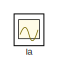
[diagram: root canvas - part 1/3, top left region]
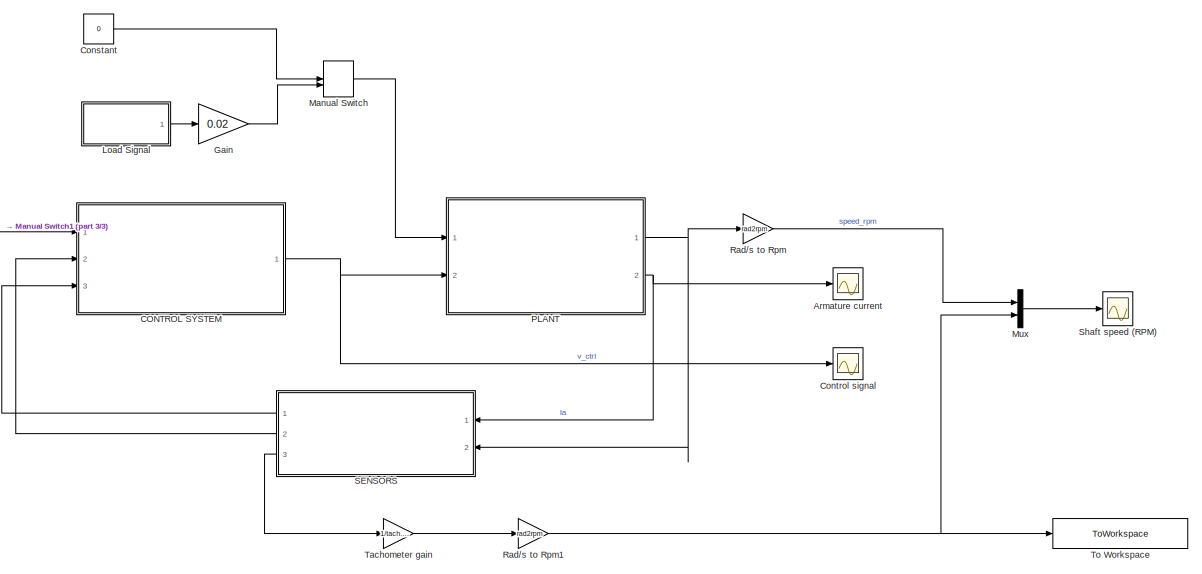
[diagram: root canvas - part 2/3, right side, full height]
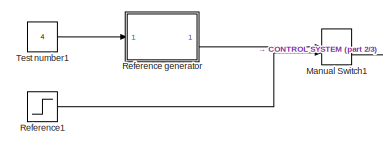
[diagram: root canvas - part 3/3, middle left region]
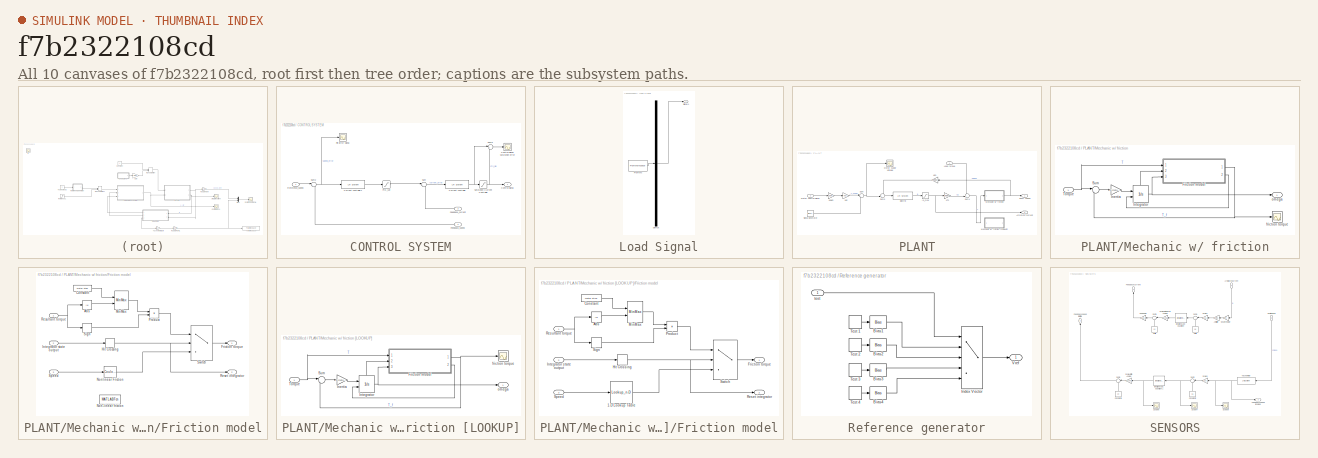
[diagram: thumbnail index - all 10 canvases of the model, root first then tree order]
MODEL slx_f7b2322108cd
KIND model
CONFIG InitFcn = InitModel;
BLOCK [Scope] Armature current 
  Floating = off
  LimitDataPoints = off
  NumInputPorts = 1
  Ports = [1]
  SaveName = ScopeData3
  ShowLegends = off
  YMax = 7
  YMin = 0
BLOCK [SubSystem] CONTROL SYSTEM
  Ports = [3, 1]
  RequestExecContextInheritance = off
BLOCK [Outport] CONTROL SYSTEM/Control signal
  IconDisplay = Port number
BLOCK [Scope] CONTROL SYSTEM/Control signal saturation error
  Decimation = 10
  Floating = off
  LimitDataPoints = off
  NumInputPorts = 1
  Ports = [1]
  SaveName = ScopeData4
  ShowLegends = off
  YMax = 1
  YMin = -1
  ZoomMode = xonly
BLOCK [Reference] CONTROL SYSTEM/Current controller  REF=cstblocks/LTI System
  IC = []
  Ports = [1, 1]
  SourceBlock = cstblocks/LTI System
  SourceType = LTI Block
  sys = -C1_dig
BLOCK [Reference] CONTROL SYSTEM/Current controller1  REF=cstblocks/LTI System
  IC = []
  Ports = [1, 1]
  SourceBlock = cstblocks/LTI System
  SourceType = LTI Block
  sys = C2_dig
BLOCK [Inport] CONTROL SYSTEM/Feedback_current
  IconDisplay = Port number
  Port = 3
BLOCK [Inport] CONTROL SYSTEM/Feedback_speed
  IconDisplay = Port number
  Port = 2
BLOCK [Saturate] CONTROL SYSTEM/PID_sat
  InputPortMap = u0
  LowerLimit = -2
  Ports = [1, 1]
  UpperLimit = 2
BLOCK [Scope] CONTROL SYSTEM/Pid Error signal
  Decimation = 20
  Floating = off
  LimitDataPoints = off
  NumInputPorts = 1
  Ports = [1]
  SaveName = ScopeData10
  ShowLegends = off
  ZoomMode = yonly
BLOCK [Inport] CONTROL SYSTEM/Reference_speed
  IconDisplay = Port number
BLOCK [Saturate] CONTROL SYSTEM/Saturation Current Controller
  InputPortMap = u0
  LowerLimit = -10
  Ports = [1, 1]
  UpperLimit = 10
BLOCK [Sum] CONTROL SYSTEM/Sum
  IconShape = round
  InputSameDT = off
  Inputs = |+-
  OutDataTypeStr = Inherit: Inherit via internal rule
  Ports = [2, 1]
  SaturateOnIntegerOverflow = off
BLOCK [Sum] CONTROL SYSTEM/Sum2
  IconShape = round
  InputSameDT = off
  Inputs = |+-
  OutDataTypeStr = Inherit: Inherit via internal rule
  Ports = [2, 1]
  SaturateOnIntegerOverflow = off
BLOCK [Sum] CONTROL SYSTEM/Sum3
  IconShape = round
  InputSameDT = off
  Inputs = |+-
  OutDataTypeStr = Inherit: Inherit via internal rule
  Ports = [2, 1]
  SaturateOnIntegerOverflow = off
BLOCK [Constant] Constant
  Value = 0
BLOCK [Scope] Control signal
  Floating = off
  LimitDataPoints = off
  NumInputPorts = 1
  Ports = [1]
  SaveName = ScopeData5
  ShowLegends = off
  YMax = 1.4
  YMin = -0.2
  ZoomMode = xonly
BLOCK [Gain] Gain
  Gain = 0.02
  OutDataTypeStr = Inherit: Inherit via internal rule
  ParamDataTypeStr = Inherit: Inherit via internal rule
  SaturateOnIntegerOverflow = off
BLOCK [Scope] Ia
  DataFormat = StructureWithTime
  Floating = off
  IOType = viewer
  LimitDataPoints = off
  NumInputPorts = 1
  Ports = []
  SampleTime = 0
  SaveName = ScopeData1
  ShowLegends = off
BLOCK [SubSystem] Load Signal
  ClipboardFcn = sigbuilder_block('clipboard');
  CloseFcn = sigbuilder_block('close');
  ContinueFcn = sigbuilder_block('continue');
  CopyFcn = sigbuilder_block('copy');
  DeleteFcn = sigbuilder_block('delete');
  LoadFcn = sigbuilder_block('load');
  MaskHideContents = on
  ModelCloseFcn = sigbuilder_block('modelClose');
  NameChangeFcn = sigbuilder_block('namechange');
  OpenFcn = sigbuilder_block('open',[437.6 199.2 550.4 400 ]);
  PauseFcn = sigbuilder_block('pause');
  Ports = [0, 1]
  PreSaveFcn = sigbuilder_block('preSave');
  RequestExecContextInheritance = off
  StartFcn = sigbuilder_block('start');
  StopFcn = sigbuilder_block('stop');
  Tag = STV Subsys
BLOCK [Demux] Load Signal/Demux
  Outputs = 1
  Ports = [1, 1]
  Tag = STV Demux
BLOCK [FromWorkspace] Load Signal/FromWs
  SampleTime = 0
  Tag = STV FromWs
  VariableName = tuvar
  ZeroCross = on
BLOCK [Outport] Load Signal/Signal 1
  IconDisplay = Port number
  Tag = STV Outport
BLOCK [ManualSwitch] Manual Switch
BLOCK [ManualSwitch] Manual Switch1
BLOCK [Mux] Mux
  DisplayOption = bar
  Inputs = 2
  Ports = [2, 1]
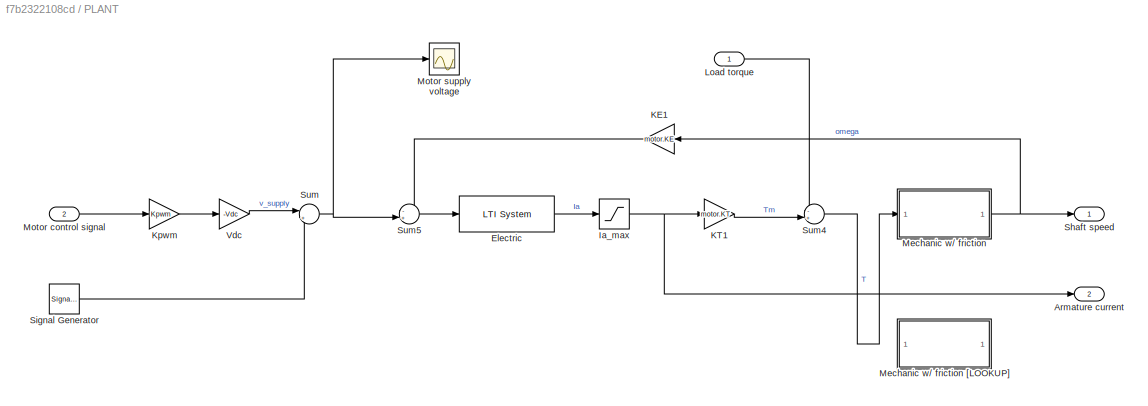
BLOCK [SubSystem] PLANT
  Ports = [2, 2]
  RequestExecContextInheritance = off
BLOCK [Outport] PLANT/Armature current
  IconDisplay = Port number
  Port = 2
BLOCK [Reference] PLANT/Electric  REF=cstblocks/LTI System
  IC = []
  Ports = [1, 1]
  SourceBlock = cstblocks/LTI System
  SourceType = LTI Block
  sys = G1
BLOCK [Saturate] PLANT/Ia_max
  Commented = through
  InputPortMap = u0
  LowerLimit = -motor.Ia_max
  Ports = [1, 1]
  UpperLimit = motor.Ia_max
BLOCK [Gain] PLANT/KE1
  Gain = motor.KE
  OutDataTypeStr = Inherit: Inherit via internal rule
  ParamDataTypeStr = Inherit: Inherit via internal rule
  SaturateOnIntegerOverflow = off
BLOCK [Gain] PLANT/KT1
  Gain = motor.KT
  OutDataTypeStr = Inherit: Inherit via internal rule
  ParamDataTypeStr = Inherit: Inherit via internal rule
  SaturateOnIntegerOverflow = off
BLOCK [Gain] PLANT/Kpwm
  Gain = Kpwm
  OutDataTypeStr = Inherit: Inherit via internal rule
  ParamDataTypeStr = Inherit: Inherit via internal rule
  SaturateOnIntegerOverflow = off
BLOCK [Inport] PLANT/Load torque
  IconDisplay = Port number
BLOCK [SubSystem] PLANT/Mechanic w// friction
  Ports = [1, 1]
  RequestExecContextInheritance = off
BLOCK [SubSystem] PLANT/Mechanic w// friction [LOOKUP]
  Ports = [1, 1]
  RequestExecContextInheritance = off
BLOCK [SubSystem] PLANT/Mechanic w// friction [LOOKUP]/Friction model
  Ports = [3, 2]
  RequestExecContextInheritance = off
BLOCK [Lookup_n-D] PLANT/Mechanic w// friction [LOOKUP]/Friction model/1-D Lookup Table
  BreakpointsForDimension1 = sp
  InternalRulePriority = Speed
  NumberOfTableDimensions = 1
  Ports = [1, 1]
  RndMeth = Simplest
  Table = tau
BLOCK [Abs] PLANT/Mechanic w// friction [LOOKUP]/Friction model/Abs
  SaturateOnIntegerOverflow = off
BLOCK [Constant] PLANT/Mechanic w// friction [LOOKUP]/Friction model/Constant
  Value = motor.stick
BLOCK [Outport] PLANT/Mechanic w// friction [LOOKUP]/Friction model/Friction torque
  IconDisplay = Port number
BLOCK [HitCross] PLANT/Mechanic w// friction [LOOKUP]/Friction model/Hit Crossing
  Ports = [1, 1]
BLOCK [Inport] PLANT/Mechanic w// friction [LOOKUP]/Friction model/Integrator state output
  IconDisplay = Port number
  Port = 2
BLOCK [MinMax] PLANT/Mechanic w// friction [LOOKUP]/Friction model/MinMax
  InputSameDT = off
  Inputs = 2
  Ports = [2, 1]
  SaturateOnIntegerOverflow = off
BLOCK [Product] PLANT/Mechanic w// friction [LOOKUP]/Friction model/Product
  InputSameDT = off
  OutDataTypeStr = Inherit: Inherit via internal rule
  Ports = [2, 1]
  RndMeth = Floor
  SaturateOnIntegerOverflow = off
BLOCK [Outport] PLANT/Mechanic w// friction [LOOKUP]/Friction model/Reset integrator
  IconDisplay = Port number
  Port = 2
BLOCK [Inport] PLANT/Mechanic w// friction [LOOKUP]/Friction model/Resultant torque
  IconDisplay = Port number
BLOCK [Signum] PLANT/Mechanic w// friction [LOOKUP]/Friction model/Sign
BLOCK [Inport] PLANT/Mechanic w// friction [LOOKUP]/Friction model/Speed
  IconDisplay = Port number
  Port = 3
BLOCK [Switch] PLANT/Mechanic w// friction [LOOKUP]/Friction model/Switch
  Criteria = u2 > Threshold
  InputSameDT = off
  SaturateOnIntegerOverflow = off
  Threshold = 0.5
BLOCK [Gain] PLANT/Mechanic w// friction [LOOKUP]/Inertia
  Gain = 1/(motor.J + motor.Jadd)
  OutDataTypeStr = Inherit: Inherit via internal rule
  ParamDataTypeStr = Inherit: Inherit via internal rule
  SaturateOnIntegerOverflow = off
BLOCK [Integrator] PLANT/Mechanic w// friction [LOOKUP]/Integrator
  ExternalReset = rising
  Ports = [2, 1, 0, 0, 1]
  ShowStatePort = on
BLOCK [Sum] PLANT/Mechanic w// friction [LOOKUP]/Sum
  IconShape = round
  InputSameDT = off
  Inputs = |+-
  OutDataTypeStr = Inherit: Inherit via internal rule
  Ports = [2, 1]
  SaturateOnIntegerOverflow = off
BLOCK [Inport] PLANT/Mechanic w// friction [LOOKUP]/Torque
  IconDisplay = Port number
BLOCK [Scope] PLANT/Mechanic w// friction [LOOKUP]/friction torque
  Floating = off
  LimitDataPoints = off
  NumInputPorts = 1
  Ports = [1]
  SaveName = ScopeData9
  ShowLegends = off
  YMax = 0.0125
  YMin = 0.0075
  ZoomMode = xonly
BLOCK [Outport] PLANT/Mechanic w// friction [LOOKUP]/omega
  IconDisplay = Port number
BLOCK [SubSystem] PLANT/Mechanic w// friction/Friction model
  Ports = [3, 2]
  RequestExecContextInheritance = off
BLOCK [Abs] PLANT/Mechanic w// friction/Friction model/Abs
  SaturateOnIntegerOverflow = off
BLOCK [Constant] PLANT/Mechanic w// friction/Friction model/Constant
  Value = motor.stick
BLOCK [Outport] PLANT/Mechanic w// friction/Friction model/Friction torque
  IconDisplay = Port number
BLOCK [HitCross] PLANT/Mechanic w// friction/Friction model/Hit Crossing
  Ports = [1, 1]
BLOCK [Inport] PLANT/Mechanic w// friction/Friction model/Integrator state output
  IconDisplay = Port number
  Port = 2
BLOCK [MinMax] PLANT/Mechanic w// friction/Friction model/MinMax
  InputSameDT = off
  Inputs = 2
  Ports = [2, 1]
  SaturateOnIntegerOverflow = off
BLOCK [MATLABFcn] PLANT/Mechanic w// friction/Friction model/Non-linear friction
  MATLABFcn = motor.coulomb+(motor.stick - motor.coulomb)*exp(-u) + u*motor.beta
  Ports = [1, 1]
BLOCK [Reference] PLANT/Mechanic w// friction/Friction model/Nonlinear Friction  REF=simulink/Discontinuities/Coulomb &
Viscous Friction
  Ports = [1, 1]
  SourceBlock = simulink/Discontinuities/Coulomb &\nViscous Friction
  SourceType = Coulombic and Viscous Friction
  gain = motor.beta
  offset = motor.coulomb
BLOCK [Product] PLANT/Mechanic w// friction/Friction model/Product
  InputSameDT = off
  OutDataTypeStr = Inherit: Inherit via internal rule
  Ports = [2, 1]
  RndMeth = Floor
  SaturateOnIntegerOverflow = off
BLOCK [Outport] PLANT/Mechanic w// friction/Friction model/Reset integrator
  IconDisplay = Port number
  Port = 2
BLOCK [Inport] PLANT/Mechanic w// friction/Friction model/Resultant torque
  IconDisplay = Port number
BLOCK [Signum] PLANT/Mechanic w// friction/Friction model/Sign
BLOCK [Inport] PLANT/Mechanic w// friction/Friction model/Speed
  IconDisplay = Port number
  Port = 3
BLOCK [Switch] PLANT/Mechanic w// friction/Friction model/Switch
  Criteria = u2 > Threshold
  InputSameDT = off
  SaturateOnIntegerOverflow = off
  Threshold = 0.5
BLOCK [Gain] PLANT/Mechanic w// friction/Inertia
  Gain = 1/(motor.J + motor.Jadd)
  OutDataTypeStr = Inherit: Inherit via internal rule
  ParamDataTypeStr = Inherit: Inherit via internal rule
  SaturateOnIntegerOverflow = off
BLOCK [Integrator] PLANT/Mechanic w// friction/Integrator
  ExternalReset = rising
  Ports = [2, 1, 0, 0, 1]
  ShowStatePort = on
BLOCK [Sum] PLANT/Mechanic w// friction/Sum
  IconShape = round
  InputSameDT = off
  Inputs = |+-
  OutDataTypeStr = Inherit: Inherit via internal rule
  Ports = [2, 1]
  SaturateOnIntegerOverflow = off
BLOCK [Inport] PLANT/Mechanic w// friction/Torque
  IconDisplay = Port number
BLOCK [Scope] PLANT/Mechanic w// friction/friction torque
  Floating = off
  LimitDataPoints = off
  NumInputPorts = 1
  Ports = [1]
  SaveName = ScopeData9
  ShowLegends = off
  YMax = 0.0125
  YMin = 0.0075
  ZoomMode = xonly
BLOCK [Outport] PLANT/Mechanic w// friction/omega
  IconDisplay = Port number
BLOCK [Inport] PLANT/Motor control signal
  IconDisplay = Port number
  Port = 2
BLOCK [Scope] PLANT/Motor supply voltage
  Floating = off
  LimitDataPoints = off
  NumInputPorts = 1
  Ports = [1]
  SaveName = ScopeData2
  ShowLegends = off
  ZoomMode = xonly
BLOCK [Outport] PLANT/Shaft speed
  IconDisplay = Port number
BLOCK [SignalGenerator] PLANT/Signal Generator
  Amplitude = 0.03
  Commented = on
  Frequency = 23e3
  Ports = [0, 1]
  WaveForm = square
BLOCK [Sum] PLANT/Sum
  IconShape = round
  InputSameDT = off
  Inputs = |++
  OutDataTypeStr = Inherit: Inherit via internal rule
  Ports = [2, 1]
  SaturateOnIntegerOverflow = off
BLOCK [Sum] PLANT/Sum4
  IconShape = round
  InputSameDT = off
  Inputs = -+|
  OutDataTypeStr = Inherit: Inherit via internal rule
  Ports = [2, 1]
  SaturateOnIntegerOverflow = off
BLOCK [Sum] PLANT/Sum5
  IconShape = round
  InputSameDT = off
  Inputs = -+|
  OutDataTypeStr = Inherit: Inherit via internal rule
  Ports = [2, 1]
  SaturateOnIntegerOverflow = off
BLOCK [Gain] PLANT/Vdc
  Gain = -Vdc
  OutDataTypeStr = Inherit: Inherit via internal rule
  ParamDataTypeStr = Inherit: Inherit via internal rule
  SaturateOnIntegerOverflow = off
BLOCK [Gain] Rad//s to Rpm
  Gain = rad2rpm
  OutDataTypeStr = Inherit: Inherit via internal rule
  ParamDataTypeStr = Inherit: Inherit via internal rule
  SaturateOnIntegerOverflow = off
BLOCK [Gain] Rad//s to Rpm1
  Gain = rad2rpm
  OutDataTypeStr = Inherit: Inherit via internal rule
  ParamDataTypeStr = Inherit: Inherit via internal rule
  SaturateOnIntegerOverflow = off
BLOCK [SubSystem] Reference generator
  Ports = [1, 1]
  RequestExecContextInheritance = off
BLOCK [Bias] Reference generator/Bias1
  Bias = 3
  SaturateOnIntegerOverflow = off
BLOCK [Bias] Reference generator/Bias2
  Bias = 1
  SaturateOnIntegerOverflow = off
BLOCK [Bias] Reference generator/Bias3
  SaturateOnIntegerOverflow = off
BLOCK [Bias] Reference generator/Bias4
  Bias = -1
  SaturateOnIntegerOverflow = off
BLOCK [MultiPortSwitch] Reference generator/Index Vector
  InputSameDT = off
  Inputs = 4
  Ports = [5, 1]
  SaturateOnIntegerOverflow = off
BLOCK [DiscretePulseGenerator] Reference generator/Test 1
  Amplitude = 2
  Period = 5
  PhaseDelay = 1
  Ports = [0, 1]
  PulseType = Time based
  PulseWidth = 50
BLOCK [DiscretePulseGenerator] Reference generator/Test 2
  Amplitude = 6
  Period = 5
  PhaseDelay = 1
  Ports = [0, 1]
  PulseType = Time based
  PulseWidth = 50
BLOCK [DiscretePulseGenerator] Reference generator/Test 3
  Amplitude = 8
  Period = 5
  PhaseDelay = 1
  Ports = [0, 1]
  PulseType = Time based
  PulseWidth = 50
BLOCK [DiscretePulseGenerator] Reference generator/Test 4
  Amplitude = 2
  Period = 5
  PhaseDelay = 1
  Ports = [0, 1]
  PulseType = Time based
  PulseWidth = 50
BLOCK [Outport] Reference generator/Vref
  IconDisplay = Port number
BLOCK [Inport] Reference generator/test
  IconDisplay = Port number
BLOCK [Step] Reference1
  SampleTime = 0
  Time = 0
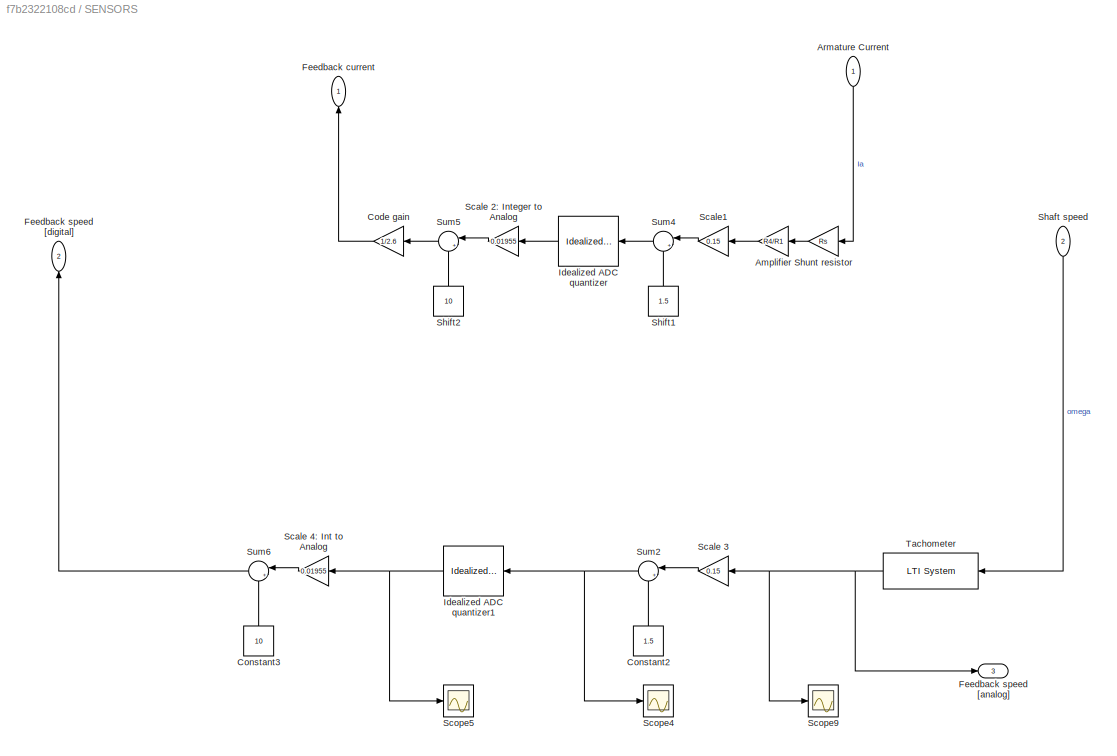
BLOCK [SubSystem] SENSORS
  Ports = [2, 3]
  RequestExecContextInheritance = off
BLOCK [Gain] SENSORS/ Amplifier 
  Gain = R4/R1
  OutDataTypeStr = Inherit: Inherit via internal rule
  ParamDataTypeStr = Inherit: Inherit via internal rule
  SaturateOnIntegerOverflow = off
BLOCK [Gain] SENSORS/ Code gain
  Gain = 1/2.6
  OutDataTypeStr = Inherit: Inherit via internal rule
  ParamDataTypeStr = Inherit: Inherit via internal rule
  SaturateOnIntegerOverflow = off
BLOCK [Gain] SENSORS/ Scale 3
  Gain = 0.15
  OutDataTypeStr = Inherit: Inherit via internal rule
  ParamDataTypeStr = Inherit: Inherit via internal rule
  SaturateOnIntegerOverflow = off
BLOCK [Gain] SENSORS/ Scale 4: Int to Analog
  Gain = 0.01955
  OutDataTypeStr = Inherit: Inherit via internal rule
  ParamDataTypeStr = Inherit: Inherit via internal rule
  SaturateOnIntegerOverflow = off
BLOCK [Gain] SENSORS/ Scale1
  Gain = 0.15
  OutDataTypeStr = Inherit: Inherit via internal rule
  ParamDataTypeStr = Inherit: Inherit via internal rule
  SaturateOnIntegerOverflow = off
BLOCK [Gain] SENSORS/ Shunt resistor
  Gain = Rs
  OutDataTypeStr = Inherit: Inherit via internal rule
  ParamDataTypeStr = Inherit: Inherit via internal rule
  SaturateOnIntegerOverflow = off
BLOCK [Inport] SENSORS/Armature Current
  IconDisplay = Port number
BLOCK [Constant] SENSORS/Constant2
  Value = 1.5
BLOCK [Constant] SENSORS/Constant3
  Value = 10
BLOCK [Outport] SENSORS/Feedback current
  IconDisplay = Port number
BLOCK [Outport] SENSORS/Feedback speed [analog]
  IconDisplay = Port number
  Port = 3
BLOCK [Outport] SENSORS/Feedback speed [digital] 
  IconDisplay = Port number
  Port = 2
BLOCK [Reference] SENSORS/Idealized ADC quantizer  REF=simulink_extras/Additional
Discrete/Idealized ADC quantizer
  AttributesFormatString = (settings: %<NumberOfConverterBits>-bit converter\nVmin: %<Vmin>, Vmax: %<Vmax>)
  NumberOfConverterBits = 10
  OutputDataType = uint16
  OutputNegativeValues = on
  Ports = [1, 1]
  SourceBlock = simulink_extras/Additional\nDiscrete/Idealized ADC quantizer
  SourceType = IdealADC
  Vmax = 3
  Vmin = 0
BLOCK [Reference] SENSORS/Idealized ADC quantizer1  REF=simulink_extras/Additional
Discrete/Idealized ADC quantizer
  AttributesFormatString = (settings: %<NumberOfConverterBits>-bit converter\nVmin: %<Vmin>, Vmax: %<Vmax>)
  NumberOfConverterBits = 10
  OutputDataType = uint16
  OutputNegativeValues = on
  Ports = [1, 1]
  SourceBlock = simulink_extras/Additional\nDiscrete/Idealized ADC quantizer
  SourceType = IdealADC
  Vmax = 3
  Vmin = 0
BLOCK [Gain] SENSORS/Scale 2: Integer to Analog
  Gain = 0.01955
  OutDataTypeStr = Inherit: Inherit via internal rule
  ParamDataTypeStr = Inherit: Inherit via internal rule
  SaturateOnIntegerOverflow = off
BLOCK [Scope] SENSORS/Scope4
  Decimation = 10
  Floating = off
  LimitDataPoints = off
  NumInputPorts = 1
  Ports = [1]
  SaveName = ScopeData6
  ShowLegends = off
  YMax = -3.75
  YMin = -3.95
  ZoomMode = xonly
BLOCK [Scope] SENSORS/Scope5
  Decimation = 10
  Floating = off
  LimitDataPoints = off
  NumInputPorts = 1
  Ports = [1]
  SaveName = ScopeData7
  ShowLegends = off
  YMax = 1100
  YMin = 500
  ZoomMode = yonly
BLOCK [Scope] SENSORS/Scope9
  Decimation = 10
  Floating = off
  LimitDataPoints = off
  NumInputPorts = 1
  Ports = [1]
  SaveName = ScopeData8
  ShowLegends = off
  YMax = 35
  ZoomMode = xonly
BLOCK [Inport] SENSORS/Shaft speed
  IconDisplay = Port number
  Port = 2
BLOCK [Constant] SENSORS/Shift1
  Value = 1.5
BLOCK [Constant] SENSORS/Shift2
  Value = 10
BLOCK [Sum] SENSORS/Sum2
  IconShape = round
  InputSameDT = off
  Inputs = |++
  OutDataTypeStr = Inherit: Inherit via internal rule
  Ports = [2, 1]
  SaturateOnIntegerOverflow = off
BLOCK [Sum] SENSORS/Sum4
  IconShape = round
  InputSameDT = off
  Inputs = |++
  OutDataTypeStr = Inherit: Inherit via internal rule
  Ports = [2, 1]
  SaturateOnIntegerOverflow = off
BLOCK [Sum] SENSORS/Sum5
  IconShape = round
  InputSameDT = off
  Inputs = |+-
  OutDataTypeStr = Inherit: Inherit via internal rule
  Ports = [2, 1]
  SaturateOnIntegerOverflow = off
BLOCK [Sum] SENSORS/Sum6
  IconShape = round
  InputSameDT = off
  Inputs = |+-
  OutDataTypeStr = Inherit: Inherit via internal rule
  Ports = [2, 1]
  SaturateOnIntegerOverflow = off
BLOCK [Reference] SENSORS/Tachometer  REF=cstblocks/LTI System
  IC = []
  Ports = [1, 1]
  SourceBlock = cstblocks/LTI System
  SourceType = LTI Block
  sys = H2
BLOCK [Scope] Shaft speed (RPM)
  Floating = off
  LegendLocations = 0.88602     0.88062    0.080852     0.04157
  LimitDataPoints = off
  NumInputPorts = 1
  Ports = [1]
  ShowLegends = on
  TimeRange = 1
  YMin = -1
BLOCK [Gain] Tachometer gain
  Gain = 1/tach.gain
  OutDataTypeStr = Inherit: Inherit via internal rule
  ParamDataTypeStr = Inherit: Inherit via internal rule
  SaturateOnIntegerOverflow = off
BLOCK [Constant] Test number1
  Value = 4
BLOCK [ToWorkspace] To Workspace
  FixptAsFi = on
  MaxDataPoints = inf
  Ports = [1]
  SampleTime = -1
  Save2DSignal = 2-D array (concatenate along first dimension)
  SaveFormat = Timeseries
  VariableName = sim_omegaDNL4
LINE CONTROL SYSTEM/Current controller1:1 -> CONTROL SYSTEM/PID_sat:1
NET CONTROL SYSTEM/Current controller:1 -> CONTROL SYSTEM/Saturation Current Controller:1, CONTROL SYSTEM/Sum3:1
LINE CONTROL SYSTEM/Feedback_current:1 -> CONTROL SYSTEM/Sum:2
LINE CONTROL SYSTEM/Feedback_speed:1 -> CONTROL SYSTEM/Sum2:2
LINE CONTROL SYSTEM/PID_sat:1 -> CONTROL SYSTEM/Sum:1
LINE CONTROL SYSTEM/Reference_speed:1 -> CONTROL SYSTEM/Sum2:1
NET CONTROL SYSTEM/Saturation Current Controller:1 -> CONTROL SYSTEM/Control signal:1, CONTROL SYSTEM/Sum3:2
NET CONTROL SYSTEM/Sum2:1 -> CONTROL SYSTEM/Current controller1:1, CONTROL SYSTEM/Pid Error signal:1
LINE CONTROL SYSTEM/Sum3:1 -> CONTROL SYSTEM/Control signal saturation error:1
LINE CONTROL SYSTEM/Sum:1 -> CONTROL SYSTEM/Current controller:1
NET CONTROL SYSTEM:1 -> Control signal:1, PLANT:2
LINE Constant:1 -> Manual Switch:1
LINE Gain:1 -> Manual Switch:2
LINE Load Signal:1 -> Gain:1
LINE Manual Switch1:1 -> CONTROL SYSTEM:1
LINE Manual Switch:1 -> PLANT:1
LINE Mux:1 -> Shaft speed (RPM):1
LINE PLANT/Electric:1 -> PLANT/Ia_max:1
NET PLANT/Ia_max:1 -> PLANT/Armature current:1, PLANT/KT1:1
LINE PLANT/KE1:1 -> PLANT/Sum5:1
LINE PLANT/KT1:1 -> PLANT/Sum4:2
LINE PLANT/Kpwm:1 -> PLANT/Vdc:1
LINE PLANT/Load torque:1 -> PLANT/Sum4:1
LINE PLANT/Mechanic w// friction [LOOKUP]/Friction model/1-D Lookup Table:1 -> PLANT/Mechanic w// friction [LOOKUP]/Friction model/Switch:3
LINE PLANT/Mechanic w// friction [LOOKUP]/Friction model/Abs:1 -> PLANT/Mechanic w// friction [LOOKUP]/Friction model/MinMax:2
LINE PLANT/Mechanic w// friction [LOOKUP]/Friction model/Constant:1 -> PLANT/Mechanic w// friction [LOOKUP]/Friction model/MinMax:1
NET PLANT/Mechanic w// friction [LOOKUP]/Friction model/Hit Crossing:1 -> PLANT/Mechanic w// friction [LOOKUP]/Friction model/Reset integrator:1, PLANT/Mechanic w// friction [LOOKUP]/Friction model/Switch:2
LINE PLANT/Mechanic w// friction [LOOKUP]/Friction model/Integrator state output:1 -> PLANT/Mechanic w// friction [LOOKUP]/Friction model/Hit Crossing:1
LINE PLANT/Mechanic w// friction [LOOKUP]/Friction model/MinMax:1 -> PLANT/Mechanic w// friction [LOOKUP]/Friction model/Product:1
LINE PLANT/Mechanic w// friction [LOOKUP]/Friction model/Product:1 -> PLANT/Mechanic w// friction [LOOKUP]/Friction model/Switch:1
NET PLANT/Mechanic w// friction [LOOKUP]/Friction model/Resultant torque:1 -> PLANT/Mechanic w// friction [LOOKUP]/Friction model/Abs:1, PLANT/Mechanic w// friction [LOOKUP]/Friction model/Sign:1
LINE PLANT/Mechanic w// friction [LOOKUP]/Friction model/Sign:1 -> PLANT/Mechanic w// friction [LOOKUP]/Friction model/Product:2
LINE PLANT/Mechanic w// friction [LOOKUP]/Friction model/Speed:1 -> PLANT/Mechanic w// friction [LOOKUP]/Friction model/1-D Lookup Table:1
LINE PLANT/Mechanic w// friction [LOOKUP]/Friction model/Switch:1 -> PLANT/Mechanic w// friction [LOOKUP]/Friction model/Friction torque:1
NET PLANT/Mechanic w// friction [LOOKUP]/Friction model:1 -> PLANT/Mechanic w// friction [LOOKUP]/Sum:2, PLANT/Mechanic w// friction [LOOKUP]/friction torque:1
LINE PLANT/Mechanic w// friction [LOOKUP]/Friction model:2 -> PLANT/Mechanic w// friction [LOOKUP]/Integrator:2
LINE PLANT/Mechanic w// friction [LOOKUP]/Inertia:1 -> PLANT/Mechanic w// friction [LOOKUP]/Integrator:1
NET PLANT/Mechanic w// friction [LOOKUP]/Integrator:1 -> PLANT/Mechanic w// friction [LOOKUP]/Friction model:3, PLANT/Mechanic w// friction [LOOKUP]/omega:1
LINE PLANT/Mechanic w// friction [LOOKUP]/Integrator:state -> PLANT/Mechanic w// friction [LOOKUP]/Friction model:2
LINE PLANT/Mechanic w// friction [LOOKUP]/Sum:1 -> PLANT/Mechanic w// friction [LOOKUP]/Inertia:1
NET PLANT/Mechanic w// friction [LOOKUP]/Torque:1 -> PLANT/Mechanic w// friction [LOOKUP]/Friction model:1, PLANT/Mechanic w// friction [LOOKUP]/Sum:1
LINE PLANT/Mechanic w// friction/Friction model/Abs:1 -> PLANT/Mechanic w// friction/Friction model/MinMax:2
LINE PLANT/Mechanic w// friction/Friction model/Constant:1 -> PLANT/Mechanic w// friction/Friction model/MinMax:1
NET PLANT/Mechanic w// friction/Friction model/Hit Crossing:1 -> PLANT/Mechanic w// friction/Friction model/Reset integrator:1, PLANT/Mechanic w// friction/Friction model/Switch:2
LINE PLANT/Mechanic w// friction/Friction model/Integrator state output:1 -> PLANT/Mechanic w// friction/Friction model/Hit Crossing:1
LINE PLANT/Mechanic w// friction/Friction model/MinMax:1 -> PLANT/Mechanic w// friction/Friction model/Product:1
LINE PLANT/Mechanic w// friction/Friction model/Nonlinear Friction:1 -> PLANT/Mechanic w// friction/Friction model/Switch:3
LINE PLANT/Mechanic w// friction/Friction model/Product:1 -> PLANT/Mechanic w// friction/Friction model/Switch:1
NET PLANT/Mechanic w// friction/Friction model/Resultant torque:1 -> PLANT/Mechanic w// friction/Friction model/Abs:1, PLANT/Mechanic w// friction/Friction model/Sign:1
LINE PLANT/Mechanic w// friction/Friction model/Sign:1 -> PLANT/Mechanic w// friction/Friction model/Product:2
LINE PLANT/Mechanic w// friction/Friction model/Speed:1 -> PLANT/Mechanic w// friction/Friction model/Nonlinear Friction:1
LINE PLANT/Mechanic w// friction/Friction model/Switch:1 -> PLANT/Mechanic w// friction/Friction model/Friction torque:1
NET PLANT/Mechanic w// friction/Friction model:1 -> PLANT/Mechanic w// friction/Sum:2, PLANT/Mechanic w// friction/friction torque:1
LINE PLANT/Mechanic w// friction/Friction model:2 -> PLANT/Mechanic w// friction/Integrator:2
LINE PLANT/Mechanic w// friction/Inertia:1 -> PLANT/Mechanic w// friction/Integrator:1
NET PLANT/Mechanic w// friction/Integrator:1 -> PLANT/Mechanic w// friction/Friction model:3, PLANT/Mechanic w// friction/omega:1
LINE PLANT/Mechanic w// friction/Integrator:state -> PLANT/Mechanic w// friction/Friction model:2
LINE PLANT/Mechanic w// friction/Sum:1 -> PLANT/Mechanic w// friction/Inertia:1
NET PLANT/Mechanic w// friction/Torque:1 -> PLANT/Mechanic w// friction/Friction model:1, PLANT/Mechanic w// friction/Sum:1
NET PLANT/Mechanic w// friction:1 -> PLANT/KE1:1, PLANT/Shaft speed:1
LINE PLANT/Motor control signal:1 -> PLANT/Kpwm:1
LINE PLANT/Signal Generator:1 -> PLANT/Sum:2
LINE PLANT/Sum4:1 -> PLANT/Mechanic w// friction:1
LINE PLANT/Sum5:1 -> PLANT/Electric:1
NET PLANT/Sum:1 -> PLANT/Motor supply voltage:1, PLANT/Sum5:2
LINE PLANT/Vdc:1 -> PLANT/Sum:1
NET PLANT:1 -> Rad//s to Rpm:1, SENSORS:2
NET PLANT:2 -> Armature current :1, SENSORS:1
NET Rad//s to Rpm1:1 -> Mux:2, To Workspace:1
LINE Rad//s to Rpm:1 -> Mux:1
LINE Reference generator/Bias1:1 -> Reference generator/Index Vector:2
LINE Reference generator/Bias2:1 -> Reference generator/Index Vector:3
LINE Reference generator/Bias3:1 -> Reference generator/Index Vector:4
LINE Reference generator/Bias4:1 -> Reference generator/Index Vector:5
LINE Reference generator/Index Vector:1 -> Reference generator/Vref:1
LINE Reference generator/Test 1:1 -> Reference generator/Bias1:1
LINE Reference generator/Test 2:1 -> Reference generator/Bias2:1
LINE Reference generator/Test 3:1 -> Reference generator/Bias3:1
LINE Reference generator/Test 4:1 -> Reference generator/Bias4:1
LINE Reference generator/test:1 -> Reference generator/Index Vector:1
LINE Reference generator:1 -> Manual Switch1:1
LINE Reference1:1 -> Manual Switch1:2
LINE SENSORS/ Amplifier :1 -> SENSORS/ Scale1:1
LINE SENSORS/ Code gain:1 -> SENSORS/Feedback current:1
LINE SENSORS/ Scale 3:1 -> SENSORS/Sum2:1
LINE SENSORS/ Scale 4: Int to Analog:1 -> SENSORS/Sum6:1
LINE SENSORS/ Scale1:1 -> SENSORS/Sum4:1
LINE SENSORS/ Shunt resistor:1 -> SENSORS/ Amplifier :1
LINE SENSORS/Armature Current:1 -> SENSORS/ Shunt resistor:1
LINE SENSORS/Constant2:1 -> SENSORS/Sum2:2
LINE SENSORS/Constant3:1 -> SENSORS/Sum6:2
NET SENSORS/Idealized ADC quantizer1:1 -> SENSORS/ Scale 4: Int to Analog:1, SENSORS/Scope5:1
LINE SENSORS/Idealized ADC quantizer:1 -> SENSORS/Scale 2: Integer to Analog:1
LINE SENSORS/Scale 2: Integer to Analog:1 -> SENSORS/Sum5:1
LINE SENSORS/Shaft speed:1 -> SENSORS/Tachometer:1
LINE SENSORS/Shift1:1 -> SENSORS/Sum4:2
LINE SENSORS/Shift2:1 -> SENSORS/Sum5:2
NET SENSORS/Sum2:1 -> SENSORS/Idealized ADC quantizer1:1, SENSORS/Scope4:1
LINE SENSORS/Sum4:1 -> SENSORS/Idealized ADC quantizer:1
LINE SENSORS/Sum5:1 -> SENSORS/ Code gain:1
LINE SENSORS/Sum6:1 -> SENSORS/Feedback speed [digital] :1
NET SENSORS/Tachometer:1 -> SENSORS/ Scale 3:1, SENSORS/Feedback speed [analog]:1, SENSORS/Scope9:1
LINE SENSORS:1 -> CONTROL SYSTEM:3
LINE SENSORS:2 -> CONTROL SYSTEM:2
LINE SENSORS:3 -> Tachometer gain:1
LINE Tachometer gain:1 -> Rad//s to Rpm1:1
LINE Test number1:1 -> Reference generator:1
note: NET lines group one-source signal fan-out (src -> all destinations, sorted); 1:1 wires keep LINE
